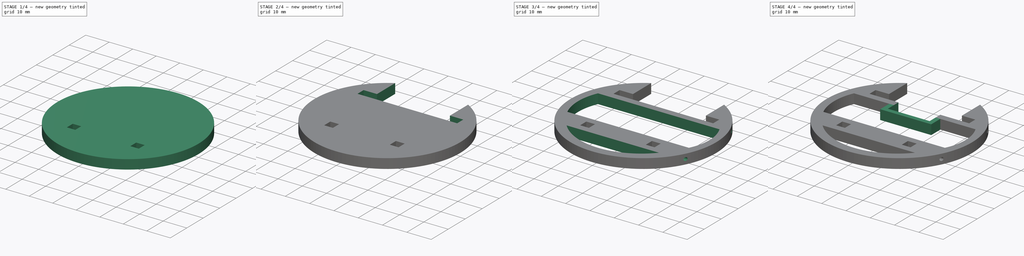
[diagram: build sequence overview — one tinted view per stage of 4, left to right]
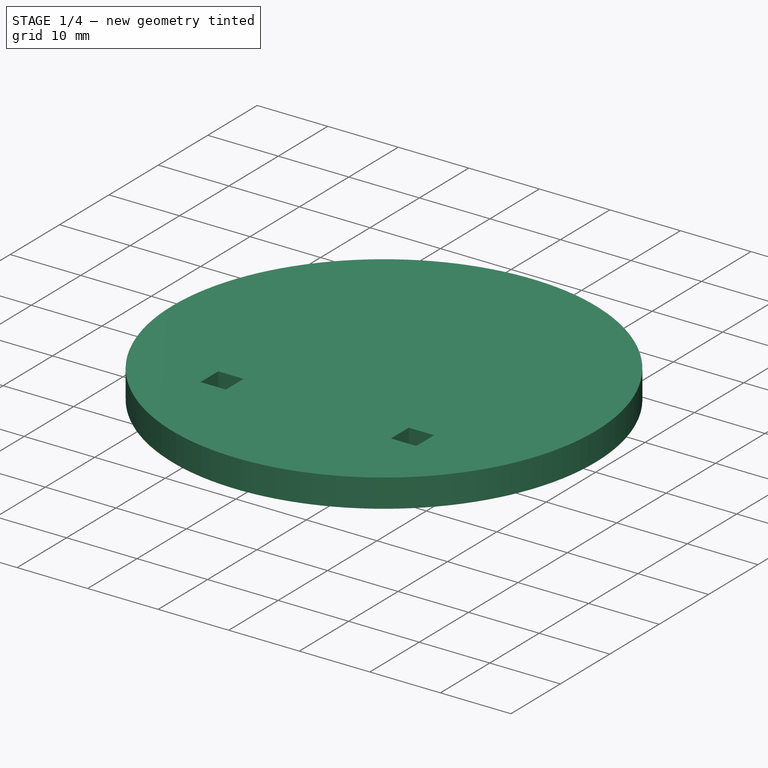
[diagram: stage 1 of 4 — iso view after this stage's code; geometry added in this stage tinted green]
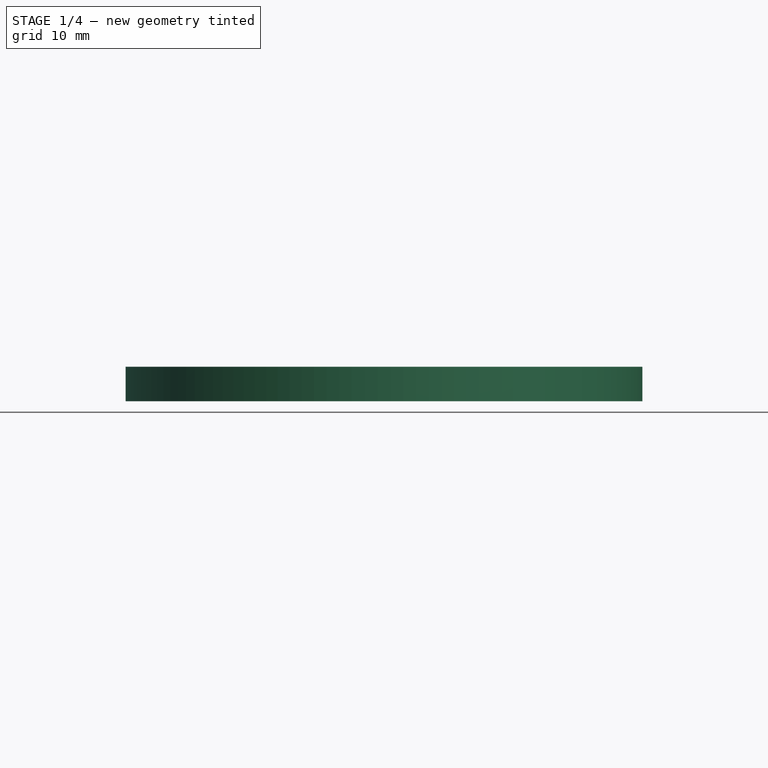
[diagram: stage 1 of 4 — front view after this stage's code; geometry added in this stage tinted green]
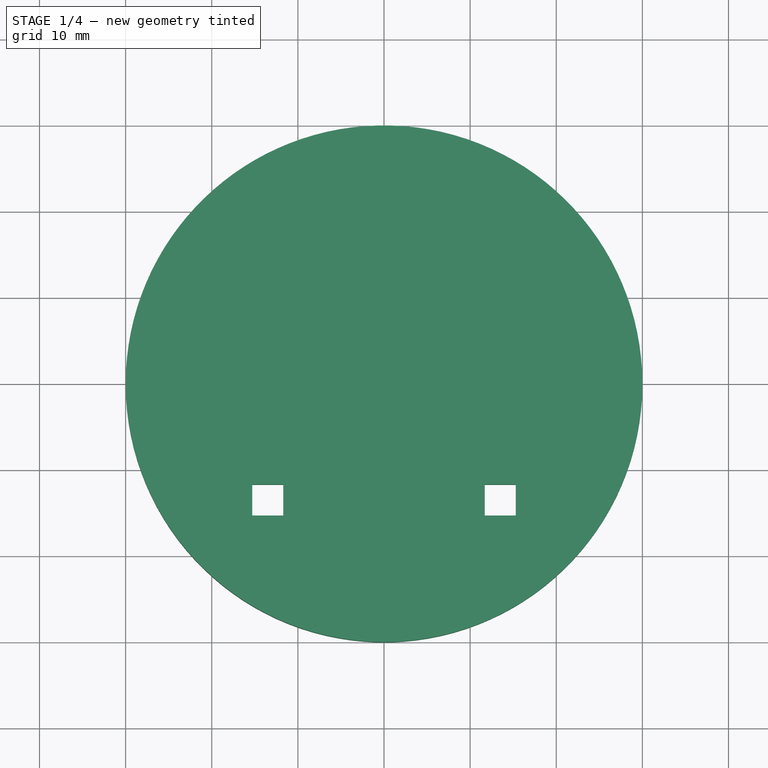
[diagram: stage 1 of 4 — top view after this stage's code; geometry added in this stage tinted green]
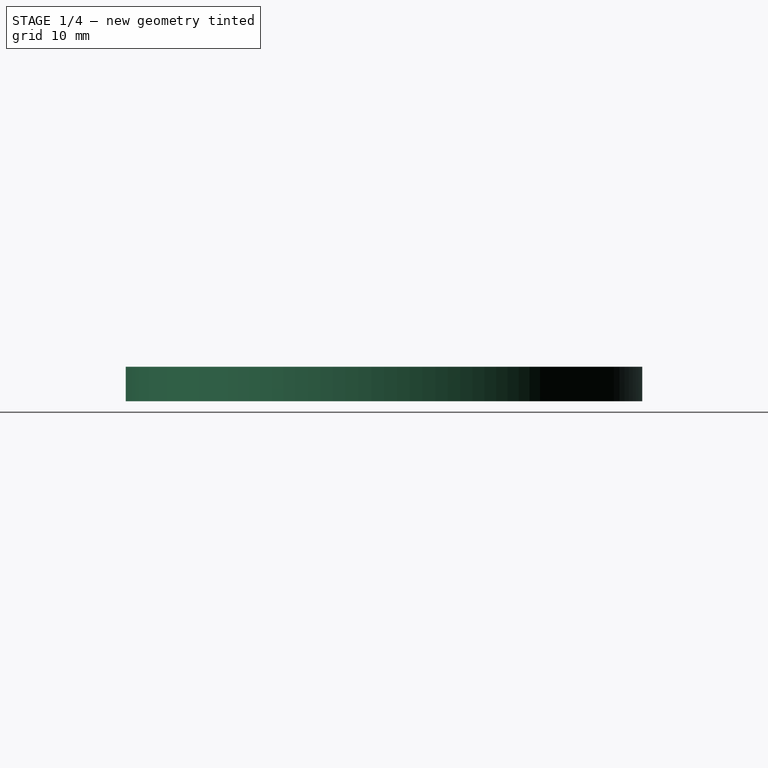
[diagram: stage 1 of 4 — right view after this stage's code; geometry added in this stage tinted green]
FCSTD DOCUMENT  (FreeCAD 1.0R38641 +468 (Git))
Label: bout_plaquess
License: All rights reserved
LicenseURL: https://en.wikipedia.org/wiki/All_rights_reserved
objects: Sketcher::SketchObject×9, PartDesign::Pocket×7, PartDesign::Pad×2, PartDesign::CoordinateSystem×1, PartDesign::Body×1
note: 47 computed .brp shape members not serialized (recipe doc carries the construction recipe); baked Part::Feature solids carry a one-line shape summary decoded from their .brp

FEATURE [Sketcher::SketchObject] Sketch
  ArcFitTolerance = 1e-06
  AttachmentSupport = -> [XY_Plane]
  FullyConstrained = true
  MakeInternals = false
  MapMode = 5
  sketch-geometry (1):
    g0: Circle CenterX=0 CenterY=0 CenterZ=0 NormalX=0 NormalY=0 NormalZ=1 AngleXU=0 Radius=30
  constraints (2):
    c: Diameter(g0) = 60
    c: Coincident(g0,g-1)
FEATURE [PartDesign::Pad] Pad
  Direction = (0,0,1)
  Length = 4
  Length2 = 10
  Profile = -> Sketch
  ReferenceAxis = -> Sketch [N_Axis]
  Refine = true
  Suppressed = false
  Type = 0
FEATURE [Sketcher::SketchObject] Sketch001
  ArcFitTolerance = 1e-06
  AttachmentSupport = -> [Pad]
  FullyConstrained = true
  MakeInternals = false
  MapMode = 5
  Placement = pos=(0,0,4) rot=(0,0,1;0rad)
  sketch-geometry (8):
    g0: LineSegment StartX=-15.3 StartY=-11.7 StartZ=0 EndX=-15.3 EndY=-15.3 EndZ=0
    g1: LineSegment StartX=-15.3 StartY=-15.3 StartZ=0 EndX=-11.7 EndY=-15.3 EndZ=0
    g2: LineSegment StartX=-11.7 StartY=-15.3 StartZ=0 EndX=-11.7 EndY=-11.7 EndZ=0
    g3: LineSegment StartX=-11.7 StartY=-11.7 StartZ=0 EndX=-15.3 EndY=-11.7 EndZ=0
    g4: LineSegment StartX=11.7 StartY=-11.7 StartZ=0 EndX=11.7 EndY=-15.3 EndZ=0
    g5: LineSegment StartX=11.7 StartY=-15.3 StartZ=0 EndX=15.3 EndY=-15.3 EndZ=0
    g6: LineSegment StartX=15.3 StartY=-15.3 StartZ=0 EndX=15.3 EndY=-11.7 EndZ=0
    g7: LineSegment StartX=15.3 StartY=-11.7 StartZ=0 EndX=11.7 EndY=-11.7 EndZ=0
  constraints (24):
    c: Coincident(g0,g1)
    c: Coincident(g1,g2)
    c: Coincident(g2,g3)
    c: Coincident(g3,g0)
    c: Vertical(g0)
    c: Vertical(g2)
    c: Horizontal(g1)
    c: Horizontal(g3)
    c: Distance(g0,g2) = 3.6
    c: Distance(g1,g3) = 3.6
    c: Coincident(g4,g5)
    c: Coincident(g5,g6)
    c: Coincident(g6,g7)
    c: Coincident(g7,g4)
    c: Vertical(g4)
    c: Vertical(g6)
    c: Horizontal(g5)
    c: Horizontal(g7)
    c: Distance(g4,g6) = 3.6
    c: Distance(g5,g7) = 3.6
    c: Horizontal(g1,g4)
    c: DistanceX(g2,g-1) = 11.7
    c: DistanceY(g2,g-1) = 11.7
    c: DistanceX(g-1,g4) = 11.7
FEATURE [PartDesign::Pocket] Pocket
  BaseFeature = -> Pad
  Direction = (0,0,-1)
  Length = 5
  Length2 = 5
  Profile = -> Sketch001
  ReferenceAxis = -> Sketch001 [N_Axis]
  Refine = true
  Suppressed = false
  Type = 0
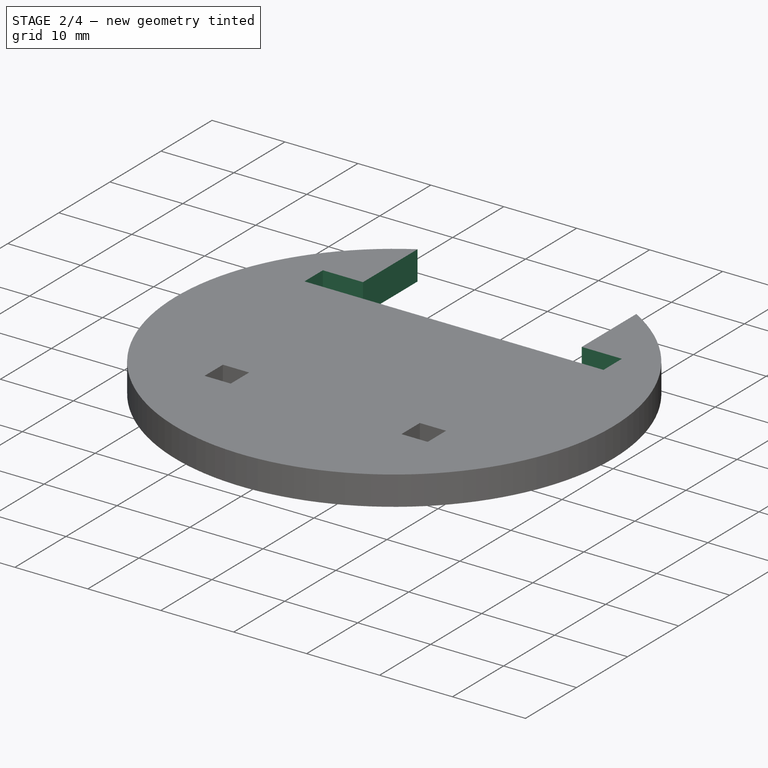
[diagram: stage 2 of 4 — iso view after this stage's code; geometry added in this stage tinted green]
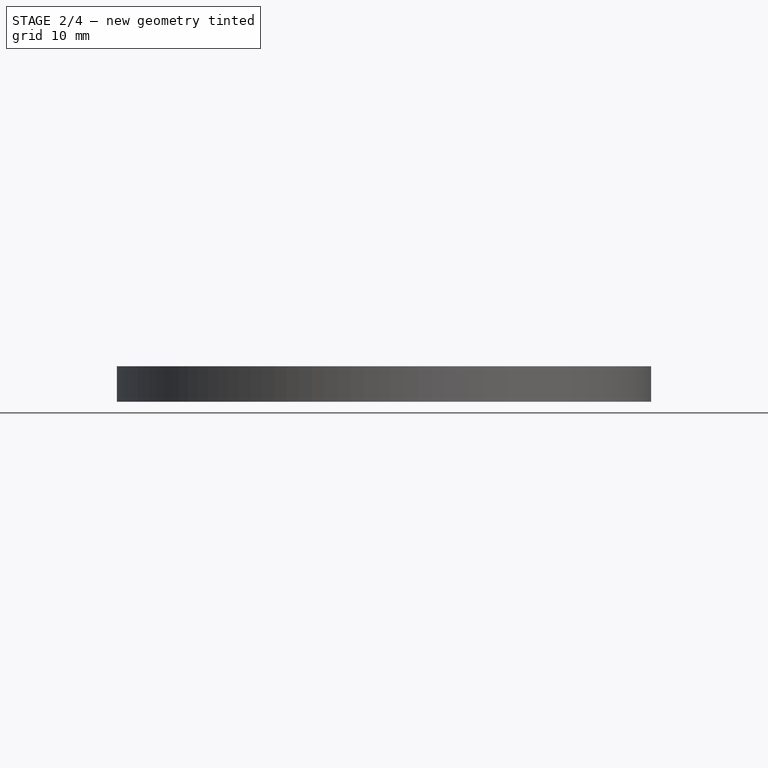
[diagram: stage 2 of 4 — front view after this stage's code; geometry added in this stage tinted green]
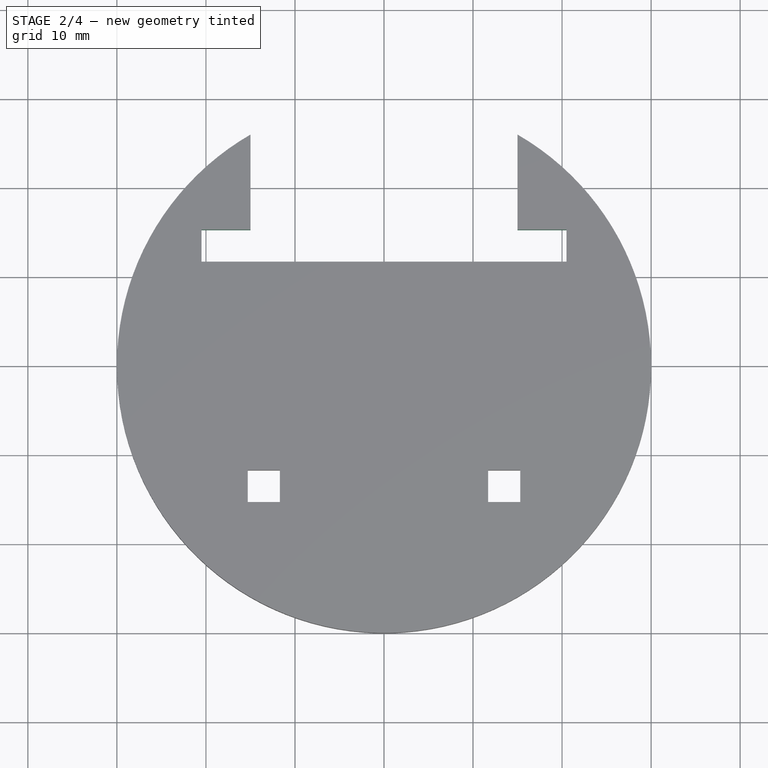
[diagram: stage 2 of 4 — top view after this stage's code; geometry added in this stage tinted green]
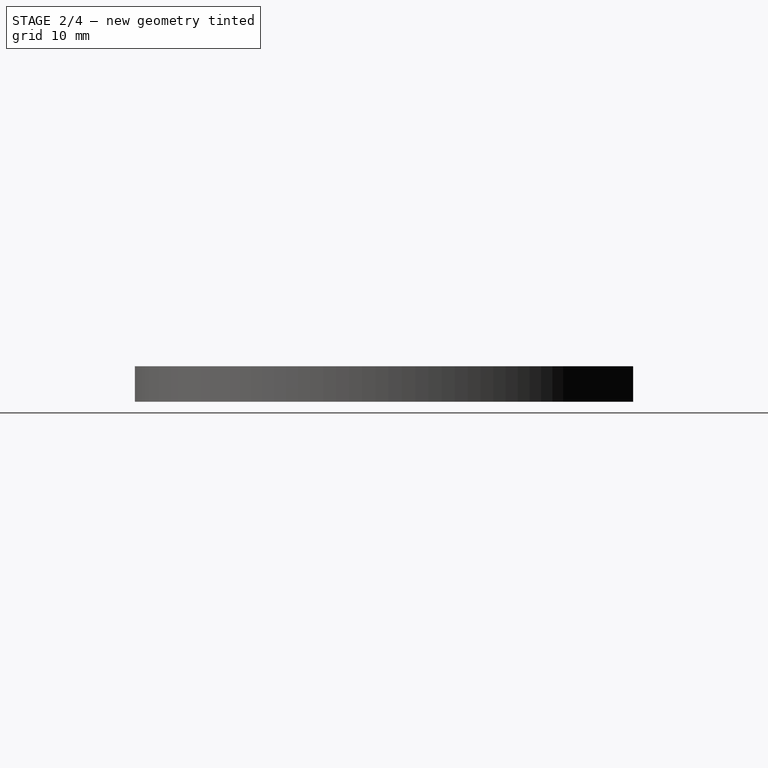
[diagram: stage 2 of 4 — right view after this stage's code; geometry added in this stage tinted green]
FEATURE [Sketcher::SketchObject] Sketch002
  ArcFitTolerance = 1e-06
  AttachmentSupport = -> [Pocket]
  FullyConstrained = true
  MakeInternals = false
  MapMode = 5
  Placement = pos=(0,0,4) rot=(0,0,1;0rad)
  sketch-geometry (4):
    g0: LineSegment StartX=-20.5 StartY=15.3 StartZ=0 EndX=-20.5 EndY=11.7 EndZ=0
    g1: LineSegment StartX=-20.5 StartY=11.7 StartZ=0 EndX=20.5 EndY=11.7 EndZ=0
    g2: LineSegment StartX=20.5 StartY=11.7 StartZ=0 EndX=20.5 EndY=15.3 EndZ=0
    g3: LineSegment StartX=20.5 StartY=15.3 StartZ=0 EndX=-20.5 EndY=15.3 EndZ=0
  constraints (12):
    c: Coincident(g0,g1)
    c: Coincident(g1,g2)
    c: Coincident(g2,g3)
    c: Coincident(g3,g0)
    c: Vertical(g0)
    c: Vertical(g2)
    c: Horizontal(g1)
    c: Horizontal(g3)
    c: Distance(g0,g2) = 41
    c: Distance(g1,g3) = 3.6
    c: DistanceX(g0,g-1) = 20.5
    c: DistanceY(g-1,g0) = 11.7
FEATURE [PartDesign::Pocket] Pocket001
  BaseFeature = -> Pocket
  Direction = (0,0,-1)
  Length = 5
  Length2 = 5
  Profile = -> Sketch002
  ReferenceAxis = -> Sketch002 [N_Axis]
  Refine = true
  Suppressed = false
  Type = 0
FEATURE [Sketcher::SketchObject] Sketch003
  ArcFitTolerance = 1e-06
  AttachmentSupport = -> [Pocket001]
  ExternalGeometry = -> [Pocket001]
  FullyConstrained = true
  MakeInternals = false
  MapMode = 5
  Placement = pos=(0,0,4) rot=(0,0,1;0rad)
  sketch-geometry (4):
    g0: LineSegment StartX=-15 StartY=15.3 StartZ=0 EndX=15 EndY=15.3 EndZ=0
    g1: LineSegment StartX=15 StartY=15.3 StartZ=0 EndX=15 EndY=33.3 EndZ=0
    g2: LineSegment StartX=15 StartY=33.3 StartZ=0 EndX=-15 EndY=33.3 EndZ=0
    g3: LineSegment StartX=-15 StartY=33.3 StartZ=0 EndX=-15 EndY=15.3 EndZ=0
  constraints (12):
    c: Coincident(g0,g1)
    c: Coincident(g1,g2)
    c: Coincident(g2,g3)
    c: Coincident(g3,g0)
    c: Horizontal(g0)
    c: Horizontal(g2)
    c: Vertical(g1)
    c: Vertical(g3)
    c: Distance(g1,g3) = 30
    c: Distance(g0,g2) = 18
    c: PointOnObject(g0,g-3)
    c: DistanceX(g-3,g0) = 5.5
FEATURE [PartDesign::Pocket] Pocket002
  BaseFeature = -> Pocket001
  Direction = (0,0,-1)
  Length = 5
  Length2 = 5
  Profile = -> Sketch003
  ReferenceAxis = -> Sketch003 [N_Axis]
  Refine = true
  Suppressed = false
  Type = 0
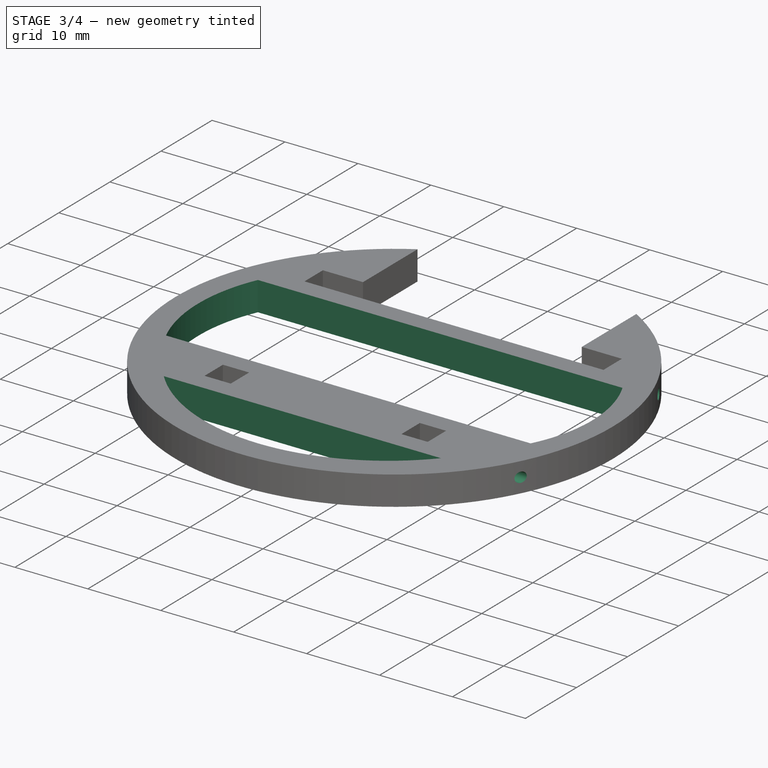
[diagram: stage 3 of 4 — iso view after this stage's code; geometry added in this stage tinted green]
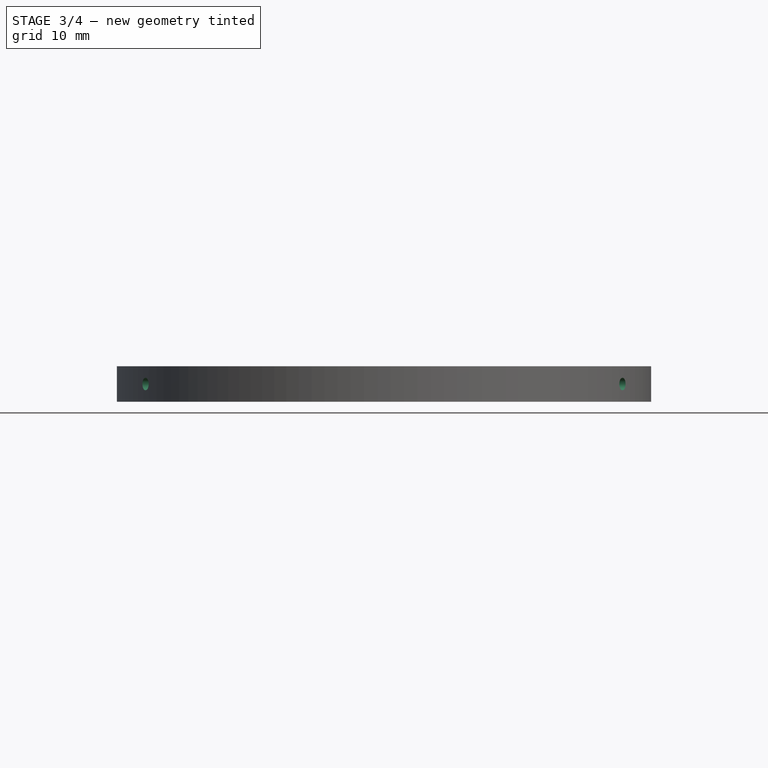
[diagram: stage 3 of 4 — front view after this stage's code; geometry added in this stage tinted green]
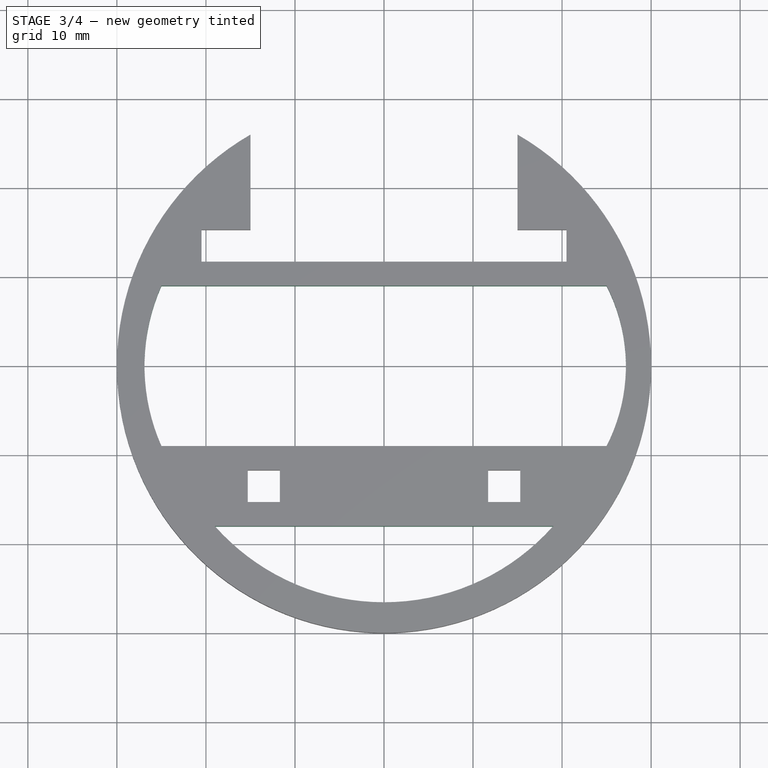
[diagram: stage 3 of 4 — top view after this stage's code; geometry added in this stage tinted green]
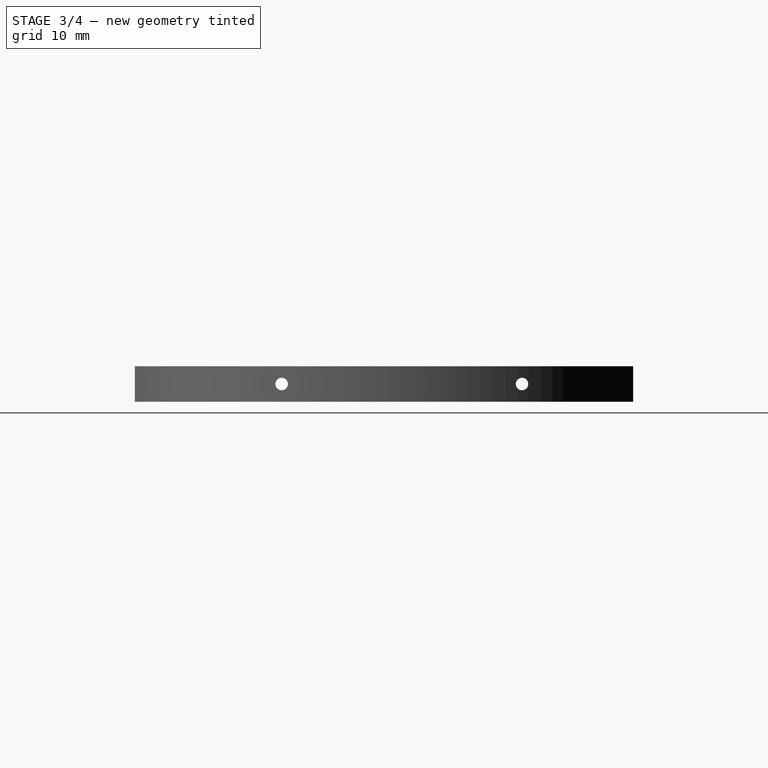
[diagram: stage 3 of 4 — right view after this stage's code; geometry added in this stage tinted green]
FEATURE [Sketcher::SketchObject] Sketch004
  ArcFitTolerance = 1e-06
  AttachmentSupport = -> [Pocket002]
  ExternalGeometry = -> [Pocket002]
  FullyConstrained = false
  MakeInternals = false
  MapMode = 5
  Placement = pos=(0,0,4) rot=(0,0,1;0rad)
  sketch-geometry (6):
    g0: LineSegment StartX=-25 StartY=9 StartZ=0 EndX=25 EndY=9 EndZ=0
    g1: LineSegment StartX=-25 StartY=-9 StartZ=0 EndX=25 EndY=-9 EndZ=0
    g2: ArcOfCircle CenterX=-4.65517 CenterY=1e-15 CenterZ=0 NormalX=0 NormalY=0 NormalZ=1 AngleXU=0 Radius=22.2466 StartAngle=2.7251 EndAngle=3.55809
    g3: ArcOfCircle CenterX=7.42727 CenterY=6.8e-15 CenterZ=0 NormalX=0 NormalY=0 NormalZ=1 AngleXU=0 Radius=19.7434 StartAngle=5.80986 EndAngle=6.75651
    g4: LineSegment StartX=-19 StartY=-18 StartZ=0 EndX=19 EndY=-18 EndZ=0
    g5: ArcOfCircle CenterX=1.024e-13 CenterY=-1.18177 CenterZ=0 NormalX=0 NormalY=0 NormalZ=1 AngleXU=0 Radius=25.3743 StartAngle=3.86615 EndAngle=5.55862
  constraints (18):
    c: Horizontal(g0)
    c: Horizontal(g1)
    c: DistanceX(g0,g0) = 50
    c: DistanceX(g1,g1) = 50
    c: Vertical(g0,g1)
    c: DistanceX(g1,g-1) = 25
    c: Coincident(g2,g0)
    c: Coincident(g2,g1)
    c: Coincident(g3,g0)
    c: Coincident(g3,g1)
    c: Distance(g4) = 38
    c: Horizontal(g4)
    c: DistanceY(g1,g-1) = 9
    c: DistanceY(g-1,g0) = 9
    c: DistanceY(g4,g-3) = 2.7
    c: DistanceX(g4,g-1) = 19
    c: Coincident(g5,g4)
    c: Coincident(g5,g4)
FEATURE [PartDesign::Pocket] Pocket003
  BaseFeature = -> Pocket002
  Direction = (0,0,-1)
  Length = 5
  Length2 = 5
  Profile = -> Sketch004
  ReferenceAxis = -> Sketch004 [N_Axis]
  Refine = true
  Suppressed = false
  Type = 0
FEATURE [Sketcher::SketchObject] Sketch005
  ArcFitTolerance = 1e-06
  AttachmentSupport = -> [Pocket003]
  FullyConstrained = true
  MakeInternals = false
  MapMode = 5
  Placement = pos=(-15.3,0,0) rot=(0.57735,0.57735,0.57735;2.0944rad)
  sketch-geometry (1):
    g0: Circle CenterX=-13.5 CenterY=2 CenterZ=0 NormalX=0 NormalY=0 NormalZ=1 AngleXU=0 Radius=0.7
  constraints (3):
    c: Diameter(g0) = 1.4
    c: DistanceY(g-1,g0) = 2
    c: DistanceX(g0,g-1) = 13.5
FEATURE [PartDesign::Pocket] Pocket004
  BaseFeature = -> Pocket003
  Direction = (-1,0,0)
  Length = 5
  Length2 = 5
  Midplane = true
  Profile = -> Sketch005
  ReferenceAxis = -> Sketch005 [N_Axis]
  Refine = true
  Suppressed = false
  Type = 1
FEATURE [Sketcher::SketchObject] Sketch006
  ArcFitTolerance = 1e-06
  AttachmentSupport = -> [Pocket004]
  FullyConstrained = true
  MakeInternals = false
  MapMode = 5
  Placement = pos=(-20.5,0,0) rot=(0.57735,0.57735,0.57735;2.0944rad)
  sketch-geometry (1):
    g0: Circle CenterX=13.5 CenterY=2 CenterZ=0 NormalX=0 NormalY=0 NormalZ=1 AngleXU=0 Radius=0.7
  constraints (3):
    c: Diameter(g0) = 1.4
    c: DistanceX(g-1,g0) = 13.5
    c: DistanceY(g-1,g0) = 2
FEATURE [PartDesign::Pocket] Pocket005
  BaseFeature = -> Pocket004
  Direction = (-1,0,0)
  Length = 5
  Length2 = 5
  Midplane = true
  Profile = -> Sketch006
  ReferenceAxis = -> Sketch006 [N_Axis]
  Refine = true
  Suppressed = false
  Type = 1
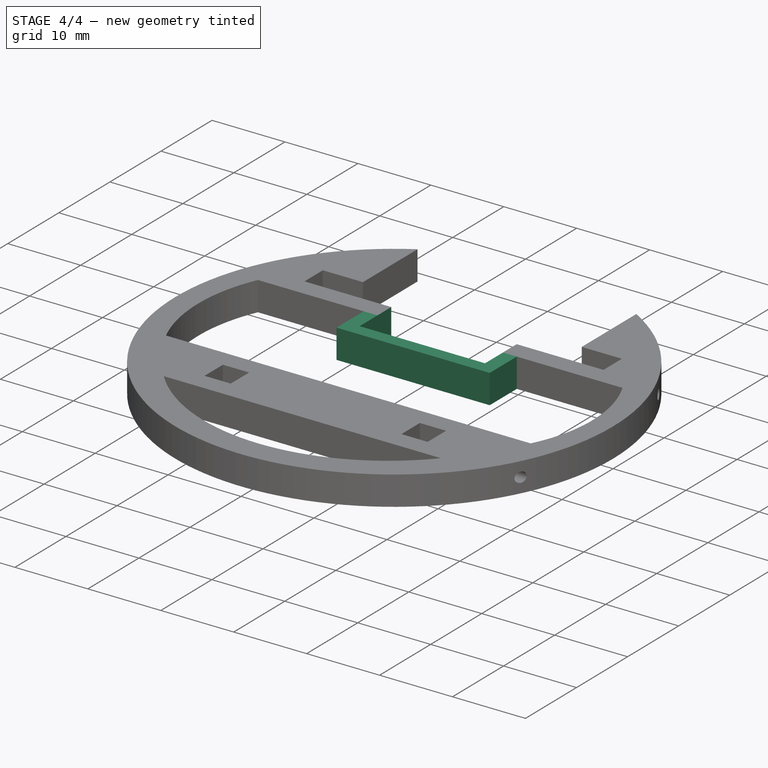
[diagram: stage 4 of 4 — iso view after this stage's code; geometry added in this stage tinted green]
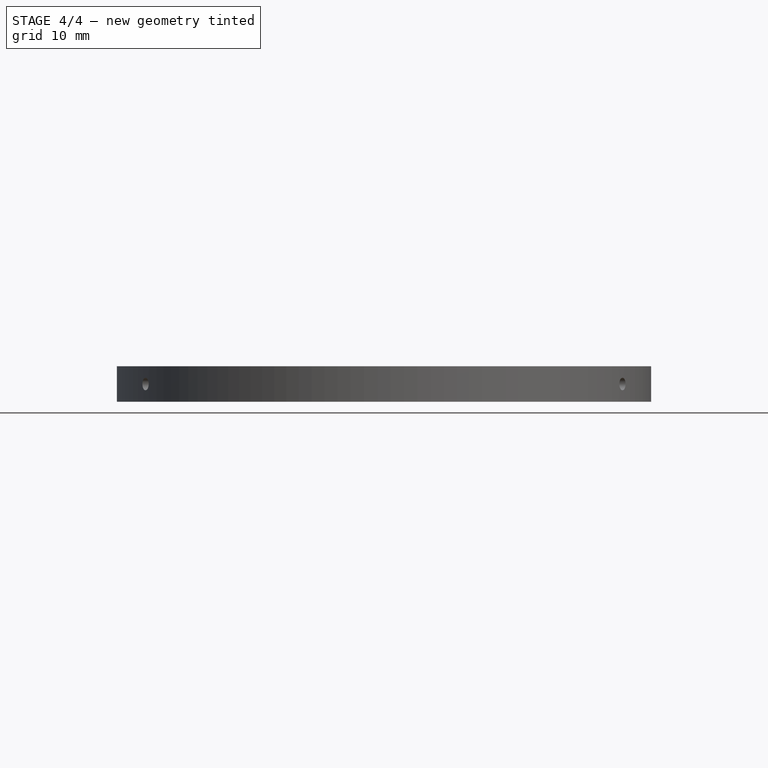
[diagram: stage 4 of 4 — front view after this stage's code; geometry added in this stage tinted green]
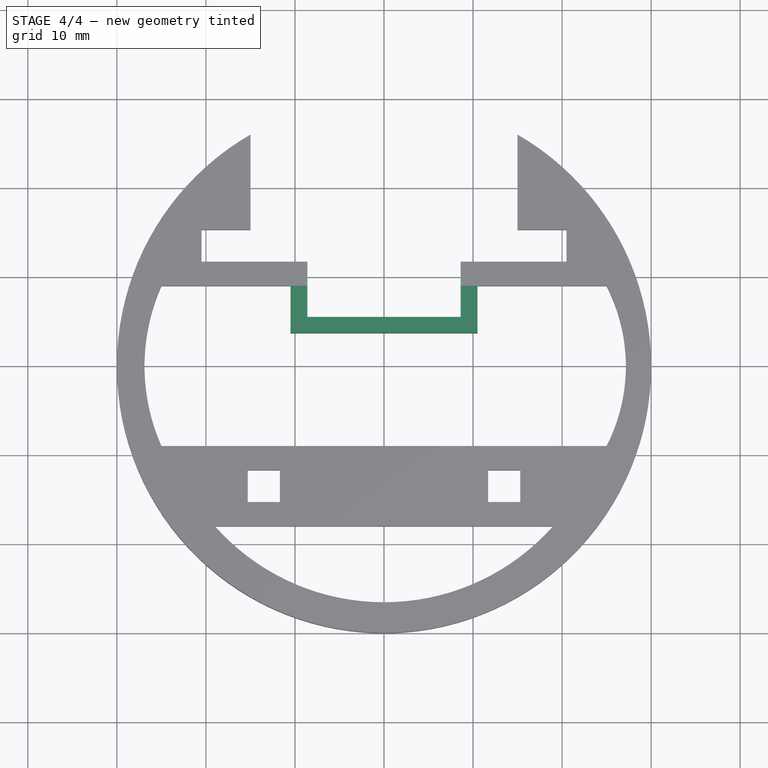
[diagram: stage 4 of 4 — top view after this stage's code; geometry added in this stage tinted green]
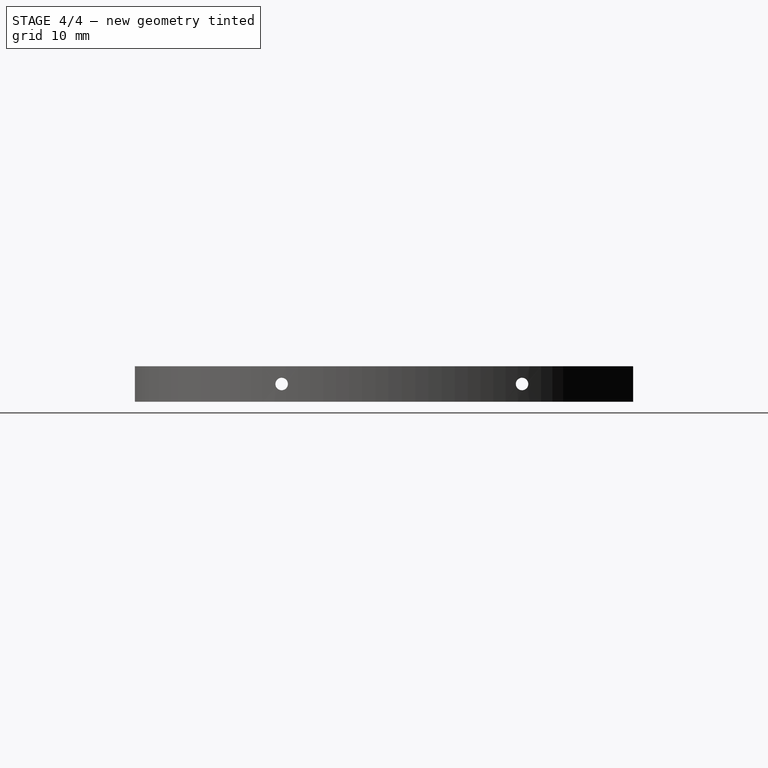
[diagram: stage 4 of 4 — right view after this stage's code; geometry added in this stage tinted green]
FEATURE [Sketcher::SketchObject] Sketch007
  ArcFitTolerance = 1e-06
  AttachmentSupport = -> [Pocket005]
  ExternalGeometry = -> [Pocket005]
  FullyConstrained = true
  MakeInternals = false
  MapMode = 5
  Placement = pos=(0,0,4) rot=(0,0,1;0rad)
  sketch-geometry (4):
    g0: LineSegment StartX=-10.5 StartY=9 StartZ=0 EndX=-10.5 EndY=3.7 EndZ=0
    g1: LineSegment StartX=-10.5 StartY=3.7 StartZ=0 EndX=10.5 EndY=3.7 EndZ=0
    g2: LineSegment StartX=10.5 StartY=3.7 StartZ=0 EndX=10.5 EndY=9 EndZ=0
    g3: LineSegment StartX=10.5 StartY=9 StartZ=0 EndX=-10.5 EndY=9 EndZ=0
  constraints (12):
    c: Coincident(g0,g1)
    c: Coincident(g1,g2)
    c: Coincident(g2,g3)
    c: Coincident(g3,g0)
    c: Vertical(g0)
    c: Vertical(g2)
    c: Horizontal(g1)
    c: Horizontal(g3)
    c: PointOnObject(g0,g-3)
    c: DistanceX(g1,g1) = 21
    c: DistanceX(g0,g-1) = 10.5
    c: DistanceY(g0,g-4) = 8
FEATURE [PartDesign::Pad] Pad001
  BaseFeature = -> Pocket005
  Direction = (0,0,1)
  Length = 4
  Length2 = 10
  Profile = -> Sketch007
  ReferenceAxis = -> Sketch007 [N_Axis]
  Reversed = true
  Suppressed = false
  Type = 0
FEATURE [Sketcher::SketchObject] Sketch008
  ArcFitTolerance = 1e-06
  AttachmentSupport = -> [Pad001]
  ExternalGeometry = -> [Pad001]
  FullyConstrained = true
  MakeInternals = false
  MapMode = 5
  Placement = pos=(0,0,4) rot=(0,0,1;0rad)
  sketch-geometry (4):
    g0: LineSegment StartX=-8.6 StartY=11.7 StartZ=0 EndX=-8.6 EndY=5.5 EndZ=0
    g1: LineSegment StartX=-8.6 StartY=5.5 StartZ=0 EndX=8.6 EndY=5.5 EndZ=0
    g2: LineSegment StartX=8.6 StartY=5.5 StartZ=0 EndX=8.6 EndY=11.7 EndZ=0
    g3: LineSegment StartX=8.6 StartY=11.7 StartZ=0 EndX=-8.6 EndY=11.7 EndZ=0
  constraints (12):
    c: Coincident(g0,g1)
    c: Coincident(g1,g2)
    c: Coincident(g2,g3)
    c: Coincident(g3,g0)
    c: Vertical(g0)
    c: Vertical(g2)
    c: Horizontal(g1)
    c: Horizontal(g3)
    c: Distance(g0,g2) = 17.2
    c: Distance(g1,g3) = 6.2
    c: PointOnObject(g0,g-3)
    c: DistanceX(g0,g-1) = 8.6
FEATURE [PartDesign::Pocket] Pocket006
  BaseFeature = -> Pad001
  Direction = (0,0,-1)
  Length = 5
  Length2 = 5
  Profile = -> Sketch008
  ReferenceAxis = -> Sketch008 [N_Axis]
  Suppressed = false
  Type = 0
FEATURE [PartDesign::CoordinateSystem] Local_CS
  AttacherType = Attacher::AttachEngine3D
  AttachmentSupport = -> [Pocket006]
  MapMode = 5
  Placement = pos=(0,0,4) rot=(0,0,1;0rad)
FEATURE [PartDesign::Body] Body  label="Corps"
  AllowCompound = false
  Group = -> [Sketch,Pad,Sketch001,Pocket,Sketch002,Pocket001,Sketch003,Pocket002,Sketch004,Pocket003,Sketch005,Pocket004,Sketch006,Pocket005,Sketch007,Pad001,Sketch008,Pocket006,Local_CS]
  Origin = -> Origin
  Tip = -> Pocket006
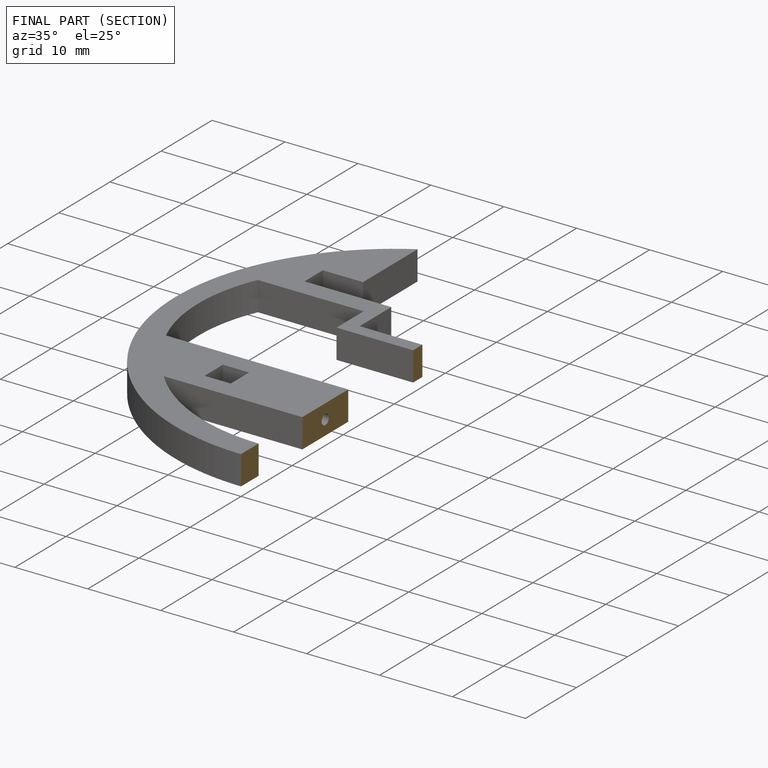
[diagram: finished part — half-section view (interior)]
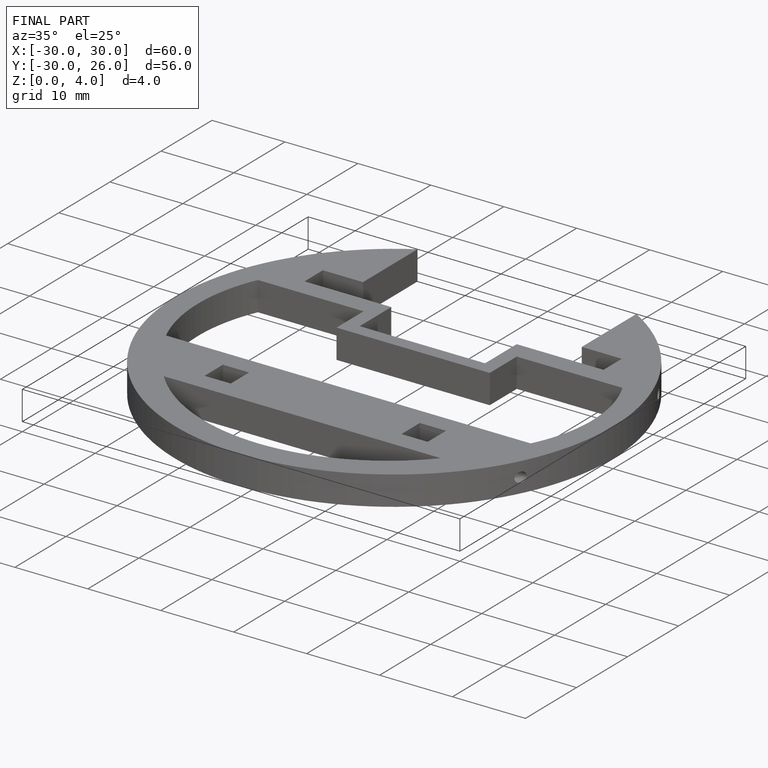
[diagram: finished part — iso view with bounding-box wireframe]
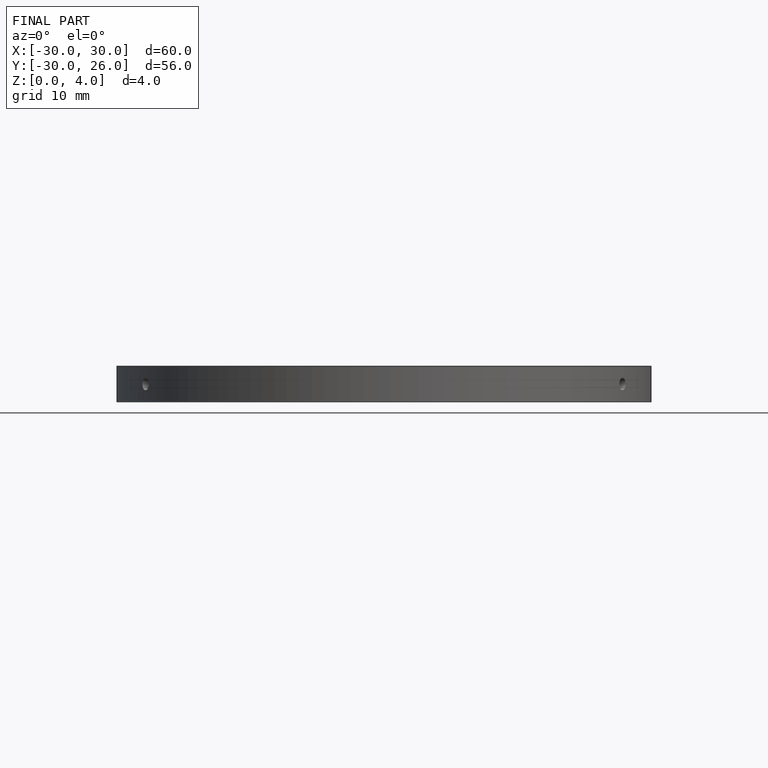
[diagram: finished part — front view with bounding-box wireframe]
